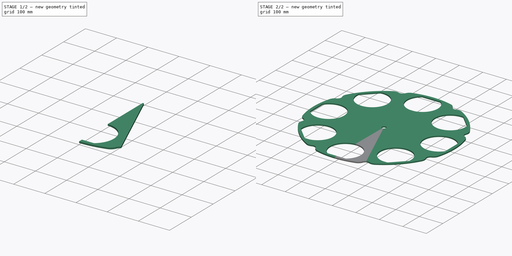
[diagram: build sequence overview — one tinted view per stage of 2, left to right]
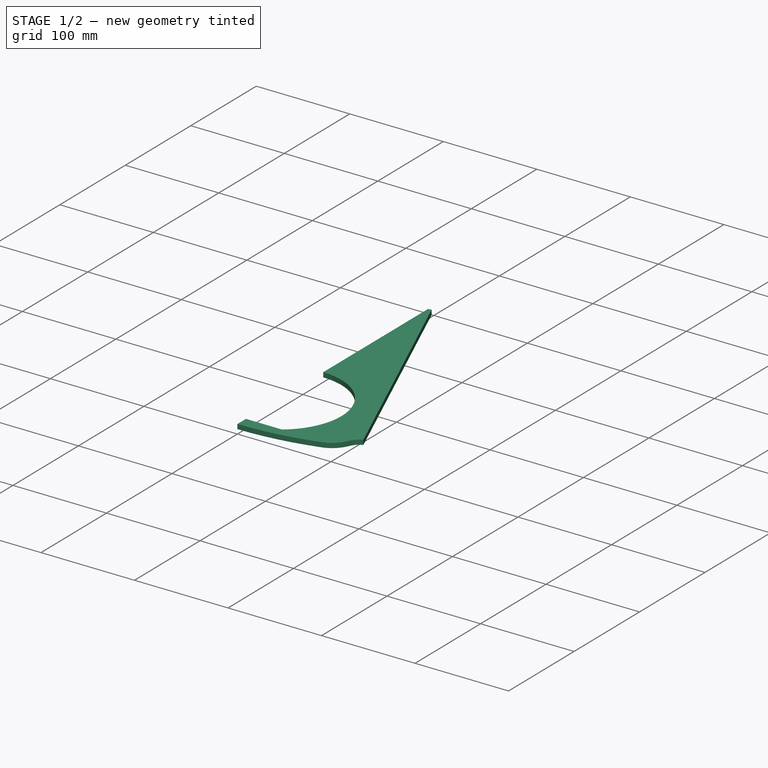
[diagram: stage 1 of 2 — iso view after this stage's code; geometry added in this stage tinted green]
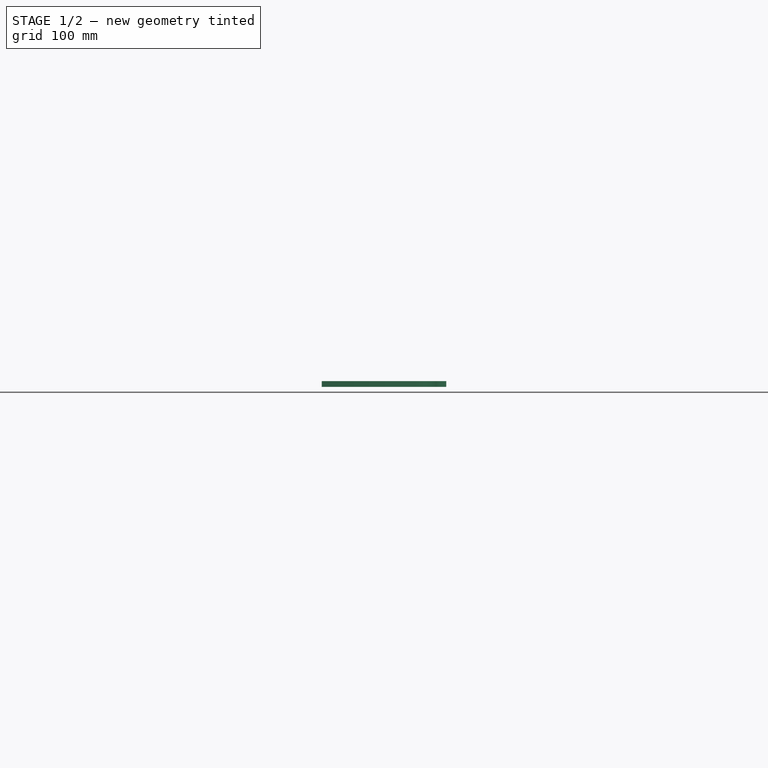
[diagram: stage 1 of 2 — front view after this stage's code; geometry added in this stage tinted green]
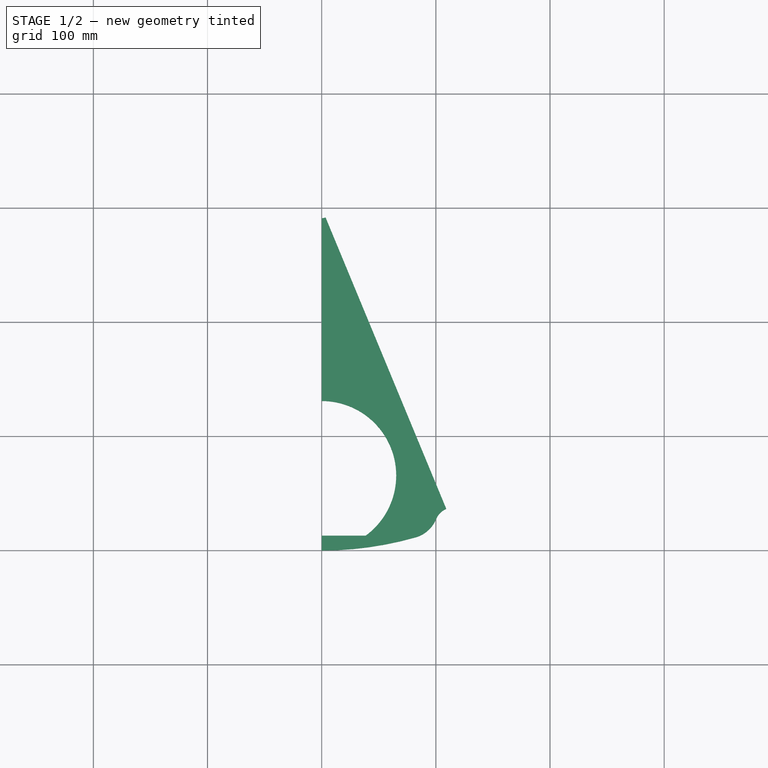
[diagram: stage 1 of 2 — top view after this stage's code; geometry added in this stage tinted green]
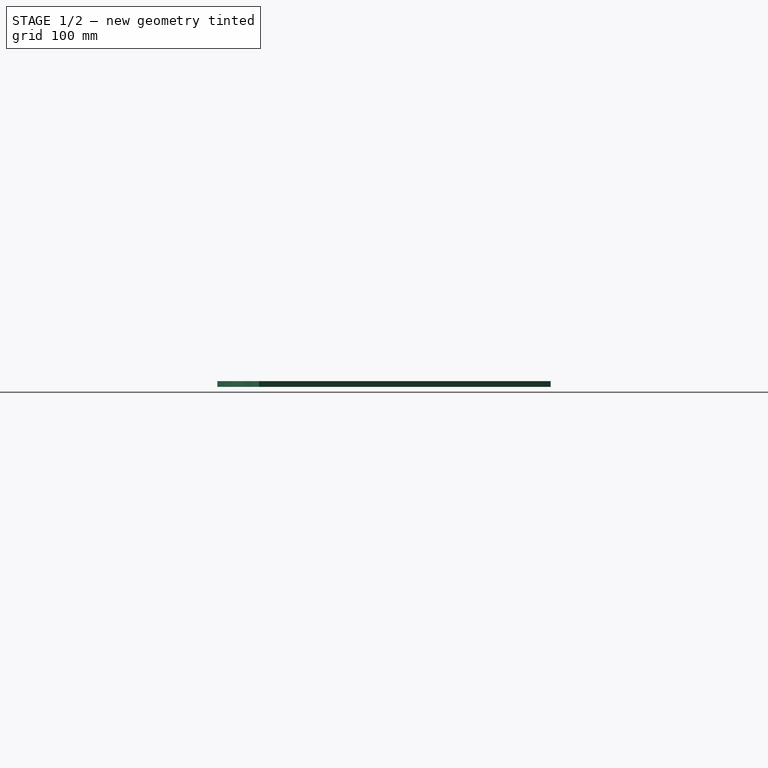
[diagram: stage 1 of 2 — right view after this stage's code; geometry added in this stage tinted green]
FCSTD DOCUMENT  (FreeCAD 0.20R29177 (Git))
Label: Revolver_Sheet
License: All rights reserved
LicenseURL: http://en.wikipedia.org/wiki/All_rights_reserved
objects: Sketcher::SketchObject×1, Spreadsheet::Sheet×1, PartDesign::Pad×1, PartDesign::Mirrored×1, PartDesign::PolarPattern×1, PartDesign::MultiTransform×1, PartDesign::Body×1
note: 7 computed .brp shape members not serialized (recipe doc carries the construction recipe); baked Part::Feature solids carry a one-line shape summary decoded from their .brp

FEATURE [Sketcher::SketchObject] Sketch  label="Revolver"
  FullyConstrained = false
  MapMode = 5
  Support = -> [XY_Plane]
  expr: Constraints[12] = 360 / Spreadsheet.number_of_slots / 2
  sketch-geometry (10):
    g0: ArcOfCircle CenterX=0 CenterY=-234.281 CenterZ=0 NormalX=0 NormalY=0 NormalZ=1 AngleXU=0 Radius=65.2807 StartAngle=5.34315 EndAngle=7.85398
    g1: LineSegment StartX=38.5 StartY=-287 StartZ=0 EndX=0 EndY=-287 EndZ=0
    g2: ArcOfCircle CenterX=0 CenterY=0 CenterZ=0 NormalX=0 NormalY=0 NormalZ=1 AngleXU=0 Radius=300 StartAngle=4.71239 EndAngle=4.9901
    g3: ArcOfCircle CenterX=74.6419 CenterY=-261.831 CenterZ=0 NormalX=0 NormalY=0 NormalZ=1 AngleXU=0 Radius=27.7378 StartAngle=4.9901 EndAngle=5.89118
    g4: ArcOfCircle CenterX=115.44 CenterY=-278.696 CenterZ=0 NormalX=0 NormalY=0 NormalZ=1 AngleXU=0 Radius=16.4089 StartAngle=1.9635 EndAngle=2.74959
    g5: LineSegment StartX=109.16 StartY=-263.537 StartZ=0 EndX=3.38281 EndY=-8.16682 EndZ=0
    g6: LineSegment StartX=-5.51e-14 StartY=-300 StartZ=0 EndX=0 EndY=-287 EndZ=0
    g7: LineSegment StartX=2e-14 StartY=-169 StartZ=0 EndX=-1.6e-15 EndY=-8.83971 EndZ=0
    g8: ArcOfCircle CenterX=0 CenterY=0 CenterZ=0 NormalX=0 NormalY=0 NormalZ=1 AngleXU=0 Radius=8.83971 StartAngle=4.71239 EndAngle=5.10509
    g9: LineSegment StartX=60.9267 StartY=-257.722 StartZ=0 EndX=100.125 EndY=-272.804 EndZ=0
  constraints (31):
    c: PointOnObject(g0,g-2)
    c: PointOnObject(g0,g-2)
    c: Coincident(g1,g0)
    c: PointOnObject(g1,g-2)
    c: Horizontal(g1)
    c: Coincident(g2,g-1)
    c: PointOnObject(g2,g-2)
    c: Coincident(g5,g4)
    c: PointOnObject(g4,g5)
    c: Coincident(g6,g2)
    c: Coincident(g6,g1)
    c: Coincident(g7,g0)
    c: Angle(g7,g5) = 0.392699
    c: Coincident(g8,g2)
    c: Coincident(g7,g8)
    c: Coincident(g5,g8)
    c: Perpendicular(g8,g5)
    c: Perpendicular(g8,g7)
    c: DistanceY(g2) = -300
    c: Distance(g6) = 13
    c: DistanceX(g1,g1) = 38.5  'flat_part_length'
    c: DistanceY(g1,g0) = 118
    c: Tangent(g3,g2) = -1.5708
    c: Tangent(g4,g3) = 1.5708
    c: PointOnObject(g9,g0)
    c: PointOnObject(g9,g4)
    c: Perpendicular(g0,g9)
    c: Perpendicular(g4,g9)
    c: Distance(g9) = 42
    c: Distance(g4,g2) = 285.25
    c: Diameter(g0) = 130.561  'hole_diameter'
FEATURE [Spreadsheet::Sheet] Spreadsheet
  cells = C4(number_of_slots)=8; D4(revolver_diameter)=60; C5(thickness)=5
FEATURE [PartDesign::Pad] Pad
  Direction = (0,0,1)
  Length = 5
  Length2 = 10
  Profile = -> Sketch
  ReferenceAxis = -> Sketch [N_Axis]
  Type = 0
  expr: Length = Spreadsheet.thickness
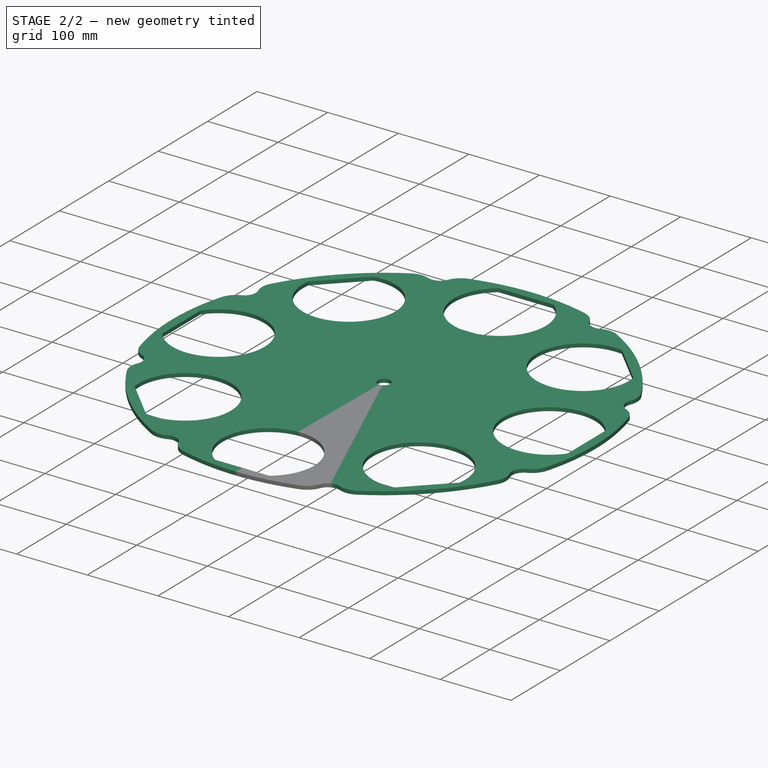
[diagram: stage 2 of 2 — iso view after this stage's code; geometry added in this stage tinted green]
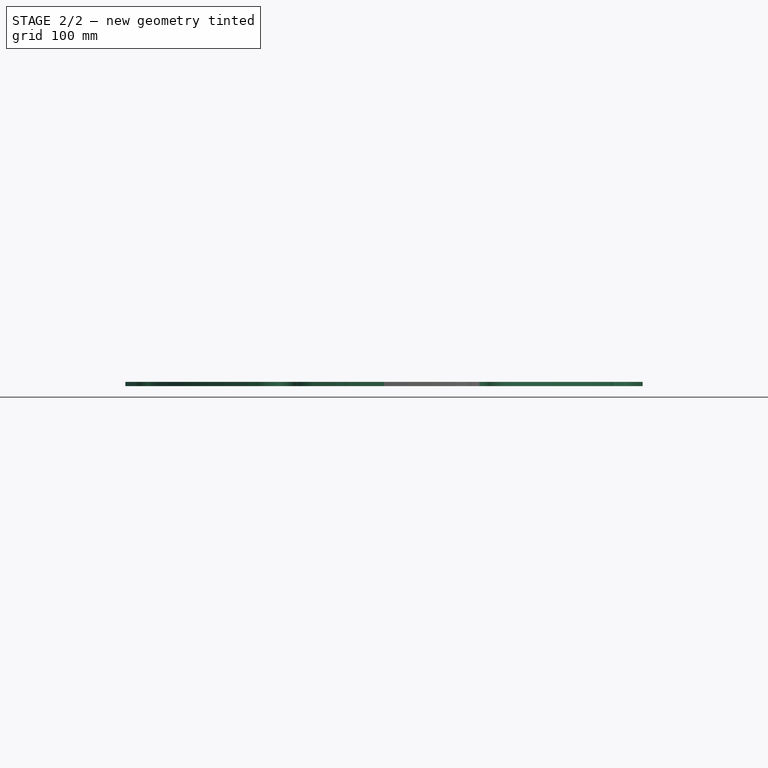
[diagram: stage 2 of 2 — front view after this stage's code; geometry added in this stage tinted green]
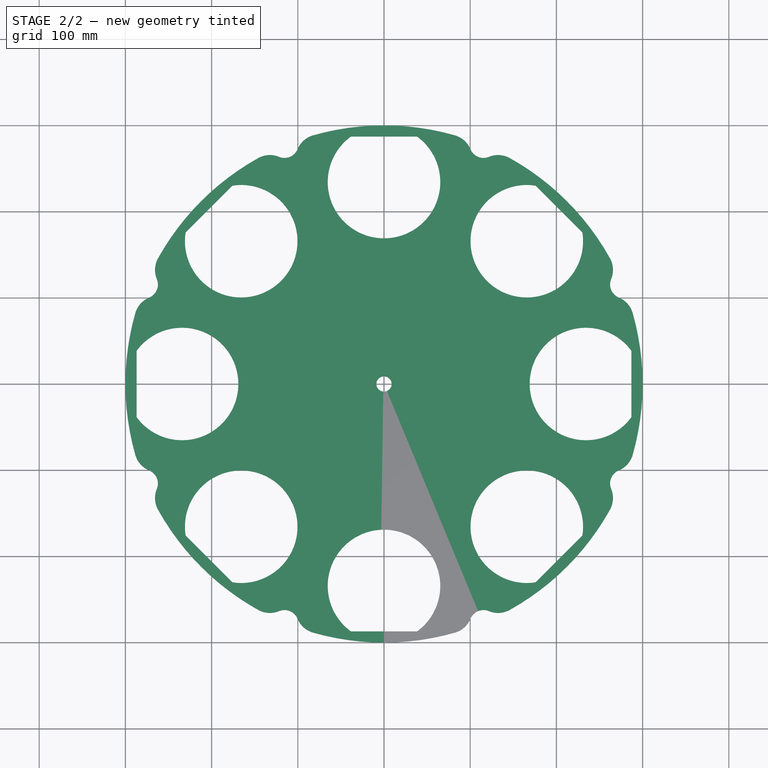
[diagram: stage 2 of 2 — top view after this stage's code; geometry added in this stage tinted green]
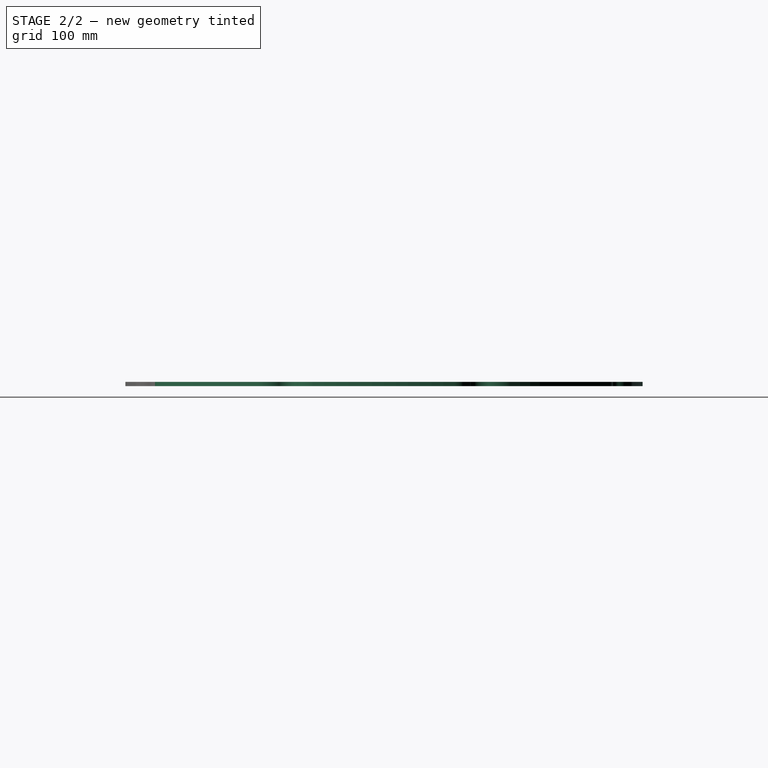
[diagram: stage 2 of 2 — right view after this stage's code; geometry added in this stage tinted green]
FEATURE [PartDesign::Mirrored] Mirrored
  MirrorPlane = -> Sketch [V_Axis]
FEATURE [PartDesign::PolarPattern] PolarPattern
  Angle = 360
  Axis = -> Sketch [N_Axis]
  Occurrences = 8
  expr: Occurrences = Spreadsheet.number_of_slots
FEATURE [PartDesign::MultiTransform] MultiTransform
  BaseFeature = -> Pad
  Originals = -> [Pad]
  Transformations = -> [Mirrored,PolarPattern]
FEATURE [PartDesign::Body] Body
  Group = -> [Sketch,Pad,MultiTransform,Mirrored,PolarPattern]
  Origin = -> Origin
  Tip = -> MultiTransform
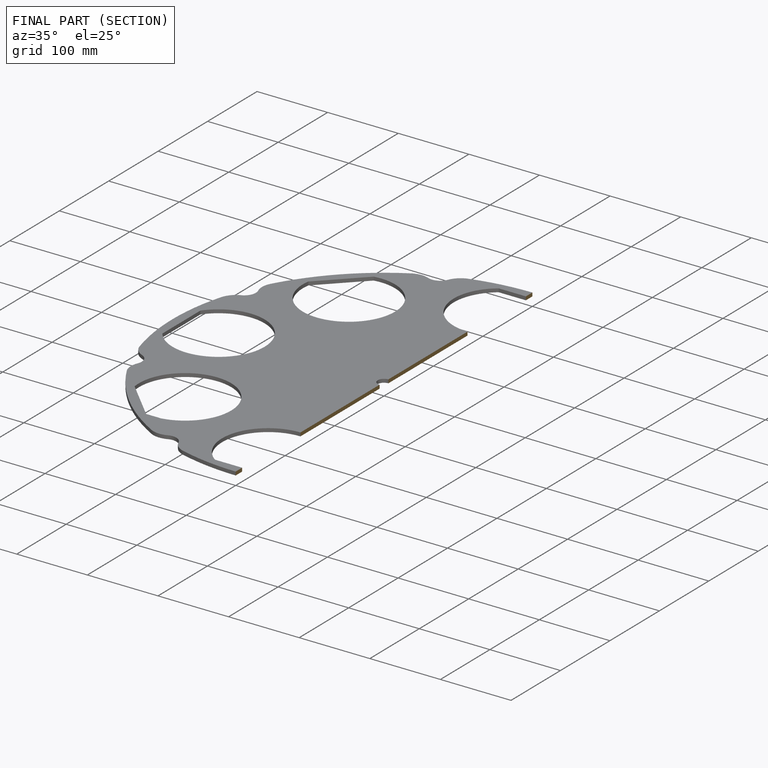
[diagram: finished part — half-section view (interior)]
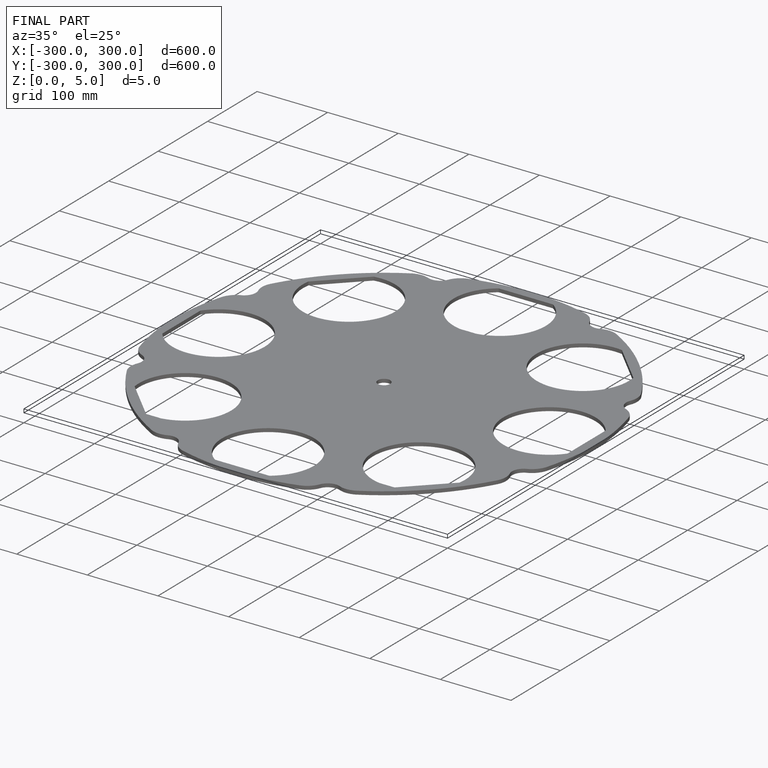
[diagram: finished part — iso view with bounding-box wireframe]
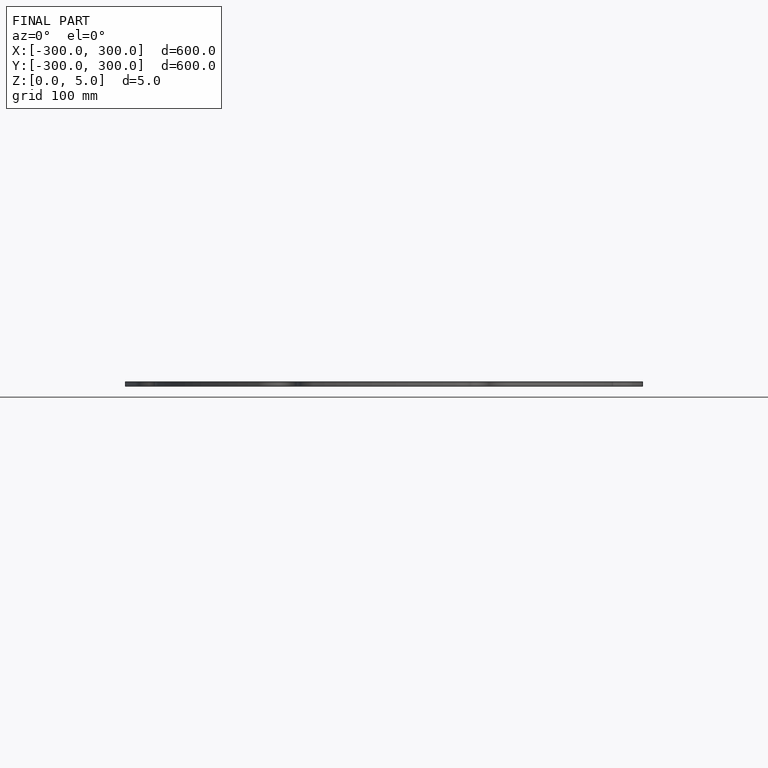
[diagram: finished part — front view with bounding-box wireframe]
